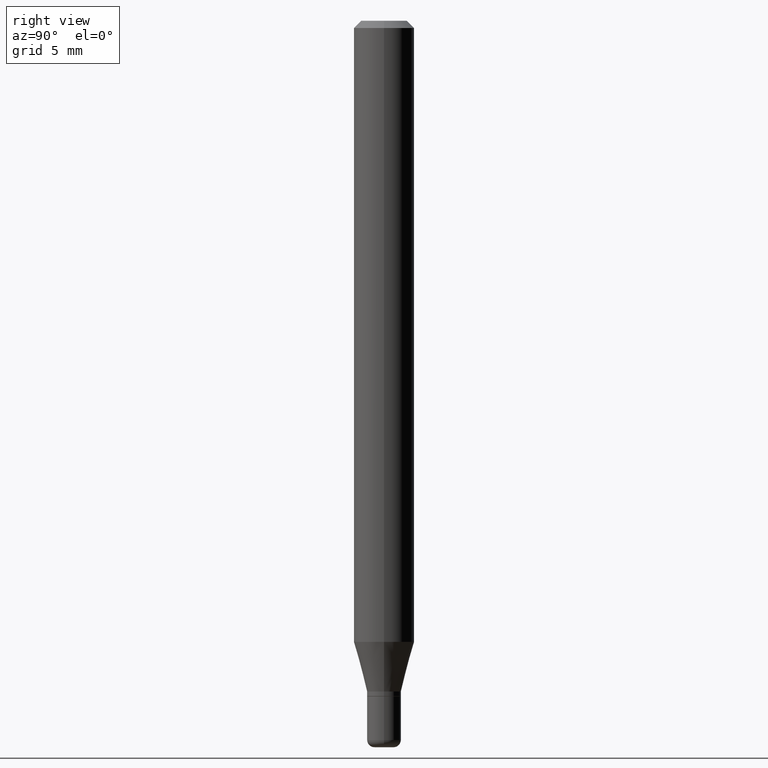
[diagram: clean part render]
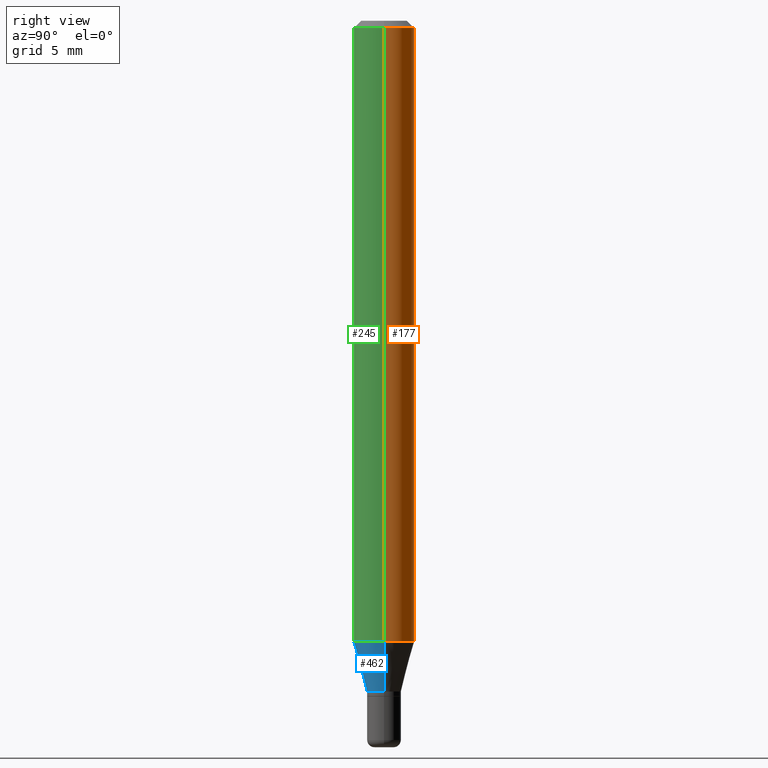
[diagram: same view with three faces highlighted in distinct colors, each labeled with its STEP entity id]
A machine part, right view with three faces highlighted in distinct colors.
Their STEP definitions:

[orange] entity #177 — the highlighted cylindrical surface (edge-blend (fillet) strip) has radius 1.5875 mm, axis along (-0, 0, 1).
#1 = VECTOR ( 'NONE', #204, 39.37007874015748143 ) ;
#4 = AXIS2_PLACEMENT_3D ( 'NONE', #450, #444, #92 ) ;
#35 = VERTEX_POINT ( 'NONE', #117 ) ;
#49 = EDGE_CURVE ( 'NONE', #268, #273, #407, .T. ) ;
#50 = CARTESIAN_POINT ( 'NONE',  ( 3.135992416158702162E-29, -4.477366046166123715E-15, -1.282368602791856160 ) ) ;
#64 = CARTESIAN_POINT ( 'NONE',  ( -0.06250000000000000000, -4.033276836316061099E-15, -1.282368602791856160 ) ) ;
#80 = CARTESIAN_POINT ( 'NONE',  ( 0.06250000000000000000, -4.888073874380378612E-16, -0.01499999999999970281 ) ) ;
#85 = CARTESIAN_POINT ( 'NONE',  ( -0.06250000000000000000, -1.820779923274322189E-15, -0.01499999999999970281 ) ) ;
#92 = DIRECTION ( 'NONE',  ( 1.000000000000000000, -6.982962677686266711E-15, 0.000000000000000000 ) ) ;
#96 = DIRECTION ( 'NONE',  ( -2.445468806185136597E-29, 3.491481338843145583E-15, 1.000000000000000000 ) ) ;
#98 = EDGE_CURVE ( 'NONE', #35, #268, #457, .T. ) ;
#117 = CARTESIAN_POINT ( 'NONE',  ( 0.06250000000000000000, -4.913801213521515384E-15, -1.282368602791856160 ) ) ;
#147 = ORIENTED_EDGE ( 'NONE', *, *, #49, .T. ) ;
#149 = ORIENTED_EDGE ( 'NONE', *, *, #185, .F. ) ;
#177 = ADVANCED_FACE ( 'NONE', ( #421 ), #178, .T. ) ;
#178 = CYLINDRICAL_SURFACE ( 'NONE', #458, 0.06250000000000000000 ) ;
#181 = CIRCLE ( 'NONE', #4, 0.06250000000000000000 ) ;
#185 = EDGE_CURVE ( 'NONE', #35, #276, #254, .T. ) ;
#186 = ORIENTED_EDGE ( 'NONE', *, *, #98, .T. ) ;
#204 = DIRECTION ( 'NONE',  ( -2.445468806185136877E-29, 3.491481338843145188E-15, 1.000000000000000000 ) ) ;
#246 = VECTOR ( 'NONE', #454, 39.37007874015748143 ) ;
#254 = LINE ( 'NONE', #414, #246 ) ;
#268 = VERTEX_POINT ( 'NONE', #64 ) ;
#273 = VERTEX_POINT ( 'NONE', #85 ) ;
#276 = VERTEX_POINT ( 'NONE', #80 ) ;
#297 = DIRECTION ( 'NONE',  ( -2.445468806185136597E-29, 3.491481338843145583E-15, 1.000000000000000000 ) ) ;
#340 = DIRECTION ( 'NONE',  ( 1.000000000000000000, -6.982962677686266711E-15, 4.876176775795935793E-29 ) ) ;
#341 = CARTESIAN_POINT ( 'NONE',  ( 0.000000000000000000, 0.000000000000000000, 0.000000000000000000 ) ) ;
#367 = CARTESIAN_POINT ( 'NONE',  ( -0.06250000000000000000, 4.440892098500626162E-16, -3.074334431409316114E-30 ) ) ;
#384 = AXIS2_PLACEMENT_3D ( 'NONE', #50, #96, #440 ) ;
#407 = LINE ( 'NONE', #367, #1 ) ;
#414 = CARTESIAN_POINT ( 'NONE',  ( 0.06250000000000000000, -4.364351673553916694E-16, 3.047610484872459871E-30 ) ) ;
#418 = EDGE_CURVE ( 'NONE', #276, #273, #181, .T. ) ;
#421 = FACE_OUTER_BOUND ( 'NONE', #504, .T. ) ;
#440 = DIRECTION ( 'NONE',  ( 1.000000000000000000, -6.982962677686262766E-15, 0.000000000000000000 ) ) ;
#444 = DIRECTION ( 'NONE',  ( -2.445468806185136597E-29, 3.491481338843145583E-15, 1.000000000000000000 ) ) ;
#450 = CARTESIAN_POINT ( 'NONE',  ( 3.668203209277632395E-31, -5.237222008264614861E-17, -0.01499999999999970281 ) ) ;
#454 = DIRECTION ( 'NONE',  ( -2.445468806185136877E-29, 3.491481338843145188E-15, 1.000000000000000000 ) ) ;
#457 = CIRCLE ( 'NONE', #384, 0.06250000000000000000 ) ;
#458 = AXIS2_PLACEMENT_3D ( 'NONE', #341, #297, #340 ) ;
#504 = EDGE_LOOP ( 'NONE', ( #186, #147, #513, #149 ) ) ;
#513 = ORIENTED_EDGE ( 'NONE', *, *, #418, .F. ) ;

[blue] entity #462 — the highlighted conical surface has half-angle 15 deg.
#2 = DIRECTION ( 'NONE',  ( 0.2588190451025211281, 1.565188264969622954E-15, 0.9659258262890679791 ) ) ;
#6 = CARTESIAN_POINT ( 'NONE',  ( 3.135992416158702162E-29, -4.477366046166123715E-15, -1.282368602791856160 ) ) ;
#10 = DIRECTION ( 'NONE',  ( -2.445468806185136597E-29, 3.491481338843145583E-15, 1.000000000000000000 ) ) ;
#15 = VERTEX_POINT ( 'NONE', #266 ) ;
#35 = VERTEX_POINT ( 'NONE', #117 ) ;
#56 = FACE_OUTER_BOUND ( 'NONE', #437, .T. ) ;
#57 = EDGE_CURVE ( 'NONE', #183, #15, #133, .T. ) ;
#64 = CARTESIAN_POINT ( 'NONE',  ( -0.06250000000000000000, -4.033276836316061099E-15, -1.282368602791856160 ) ) ;
#82 = CARTESIAN_POINT ( 'NONE',  ( 3.386974296566414366E-29, -4.835701654297756579E-15, -1.385000000000000009 ) ) ;
#83 = EDGE_CURVE ( 'NONE', #15, #35, #252, .T. ) ;
#90 = DIRECTION ( 'NONE',  ( -2.445468806185136597E-29, 3.491481338843145583E-15, 1.000000000000000000 ) ) ;
#102 = ORIENTED_EDGE ( 'NONE', *, *, #83, .T. ) ;
#111 = ORIENTED_EDGE ( 'NONE', *, *, #160, .F. ) ;
#117 = CARTESIAN_POINT ( 'NONE',  ( 0.06250000000000000000, -4.913801213521515384E-15, -1.282368602791856160 ) ) ;
#133 = CIRCLE ( 'NONE', #424, 0.03500000000000001027 ) ;
#160 = EDGE_CURVE ( 'NONE', #268, #35, #209, .T. ) ;
#183 = VERTEX_POINT ( 'NONE', #380 ) ;
#200 = CONICAL_SURFACE ( 'NONE', #413, 0.03500000000000001027, 0.2617993877991498519 ) ;
#209 = CIRCLE ( 'NONE', #237, 0.06250000000000000000 ) ;
#221 = CARTESIAN_POINT ( 'NONE',  ( -0.03500000000000001027, -4.587011696781721293E-15, -1.385000000000000009 ) ) ;
#224 = DIRECTION ( 'NONE',  ( -0.2588190451025211281, 5.211531920934547886E-15, 0.9659258262890679791 ) ) ;
#237 = AXIS2_PLACEMENT_3D ( 'NONE', #6, #90, #479 ) ;
#238 = ORIENTED_EDGE ( 'NONE', *, *, #329, .F. ) ;
#240 = LINE ( 'NONE', #221, #484 ) ;
#248 = CARTESIAN_POINT ( 'NONE',  ( 3.386974296566414366E-29, -4.835701654297756579E-15, -1.385000000000000009 ) ) ;
#252 = LINE ( 'NONE', #285, #419 ) ;
#266 = CARTESIAN_POINT ( 'NONE',  ( 0.03500000000000001027, -5.080105348016776545E-15, -1.385000000000000009 ) ) ;
#268 = VERTEX_POINT ( 'NONE', #64 ) ;
#272 = ORIENTED_EDGE ( 'NONE', *, *, #57, .T. ) ;
#285 = CARTESIAN_POINT ( 'NONE',  ( 0.03500000000000001027, -5.080105348016776545E-15, -1.385000000000000009 ) ) ;
#328 = DIRECTION ( 'NONE',  ( 1.000000000000000000, -6.982962677686275388E-15, 0.000000000000000000 ) ) ;
#329 = EDGE_CURVE ( 'NONE', #183, #268, #240, .T. ) ;
#380 = CARTESIAN_POINT ( 'NONE',  ( -0.03500000000000001027, -4.310144266548890801E-15, -1.385000000000000009 ) ) ;
#409 = DIRECTION ( 'NONE',  ( -2.445468806185136597E-29, 3.491481338843145583E-15, 1.000000000000000000 ) ) ;
#413 = AXIS2_PLACEMENT_3D ( 'NONE', #248, #409, #483 ) ;
#419 = VECTOR ( 'NONE', #2, 39.37007874015748854 ) ;
#424 = AXIS2_PLACEMENT_3D ( 'NONE', #82, #10, #328 ) ;
#437 = EDGE_LOOP ( 'NONE', ( #238, #272, #102, #111 ) ) ;
#462 = ADVANCED_FACE ( 'NONE', ( #56 ), #200, .T. ) ;
#479 = DIRECTION ( 'NONE',  ( 1.000000000000000000, -6.982962677686262766E-15, 0.000000000000000000 ) ) ;
#483 = DIRECTION ( 'NONE',  ( 1.000000000000000000, -6.982962677686275388E-15, 0.000000000000000000 ) ) ;
#484 = VECTOR ( 'NONE', #224, 39.37007874015748854 ) ;

[green] entity #245 — the highlighted cylindrical surface (edge-blend (fillet) strip) has radius 1.5875 mm, axis along (-0, 0, 1).
#1 = VECTOR ( 'NONE', #204, 39.37007874015748143 ) ;
#6 = CARTESIAN_POINT ( 'NONE',  ( 3.135992416158702162E-29, -4.477366046166123715E-15, -1.282368602791856160 ) ) ;
#16 = CARTESIAN_POINT ( 'NONE',  ( 0.000000000000000000, 0.000000000000000000, 0.000000000000000000 ) ) ;
#35 = VERTEX_POINT ( 'NONE', #117 ) ;
#49 = EDGE_CURVE ( 'NONE', #268, #273, #407, .T. ) ;
#51 = CARTESIAN_POINT ( 'NONE',  ( 3.668203209277632395E-31, -5.237222008264614861E-17, -0.01499999999999970281 ) ) ;
#64 = CARTESIAN_POINT ( 'NONE',  ( -0.06250000000000000000, -4.033276836316061099E-15, -1.282368602791856160 ) ) ;
#68 = AXIS2_PLACEMENT_3D ( 'NONE', #16, #477, #280 ) ;
#79 = ORIENTED_EDGE ( 'NONE', *, *, #130, .F. ) ;
#80 = CARTESIAN_POINT ( 'NONE',  ( 0.06250000000000000000, -4.888073874380378612E-16, -0.01499999999999970281 ) ) ;
#85 = CARTESIAN_POINT ( 'NONE',  ( -0.06250000000000000000, -1.820779923274322189E-15, -0.01499999999999970281 ) ) ;
#90 = DIRECTION ( 'NONE',  ( -2.445468806185136597E-29, 3.491481338843145583E-15, 1.000000000000000000 ) ) ;
#99 = AXIS2_PLACEMENT_3D ( 'NONE', #51, #208, #478 ) ;
#117 = CARTESIAN_POINT ( 'NONE',  ( 0.06250000000000000000, -4.913801213521515384E-15, -1.282368602791856160 ) ) ;
#130 = EDGE_CURVE ( 'NONE', #273, #276, #498, .T. ) ;
#142 = ORIENTED_EDGE ( 'NONE', *, *, #160, .T. ) ;
#160 = EDGE_CURVE ( 'NONE', #268, #35, #209, .T. ) ;
#185 = EDGE_CURVE ( 'NONE', #35, #276, #254, .T. ) ;
#204 = DIRECTION ( 'NONE',  ( -2.445468806185136877E-29, 3.491481338843145188E-15, 1.000000000000000000 ) ) ;
#208 = DIRECTION ( 'NONE',  ( -2.445468806185136597E-29, 3.491481338843145583E-15, 1.000000000000000000 ) ) ;
#209 = CIRCLE ( 'NONE', #237, 0.06250000000000000000 ) ;
#237 = AXIS2_PLACEMENT_3D ( 'NONE', #6, #90, #479 ) ;
#245 = ADVANCED_FACE ( 'NONE', ( #373 ), #335, .T. ) ;
#246 = VECTOR ( 'NONE', #454, 39.37007874015748143 ) ;
#254 = LINE ( 'NONE', #414, #246 ) ;
#268 = VERTEX_POINT ( 'NONE', #64 ) ;
#273 = VERTEX_POINT ( 'NONE', #85 ) ;
#276 = VERTEX_POINT ( 'NONE', #80 ) ;
#280 = DIRECTION ( 'NONE',  ( 1.000000000000000000, -6.982962677686266711E-15, 4.876176775795935793E-29 ) ) ;
#335 = CYLINDRICAL_SURFACE ( 'NONE', #68, 0.06250000000000000000 ) ;
#367 = CARTESIAN_POINT ( 'NONE',  ( -0.06250000000000000000, 4.440892098500626162E-16, -3.074334431409316114E-30 ) ) ;
#373 = FACE_OUTER_BOUND ( 'NONE', #508, .T. ) ;
#383 = ORIENTED_EDGE ( 'NONE', *, *, #49, .F. ) ;
#407 = LINE ( 'NONE', #367, #1 ) ;
#414 = CARTESIAN_POINT ( 'NONE',  ( 0.06250000000000000000, -4.364351673553916694E-16, 3.047610484872459871E-30 ) ) ;
#430 = ORIENTED_EDGE ( 'NONE', *, *, #185, .T. ) ;
#454 = DIRECTION ( 'NONE',  ( -2.445468806185136877E-29, 3.491481338843145188E-15, 1.000000000000000000 ) ) ;
#477 = DIRECTION ( 'NONE',  ( -2.445468806185136597E-29, 3.491481338843145583E-15, 1.000000000000000000 ) ) ;
#478 = DIRECTION ( 'NONE',  ( 1.000000000000000000, -6.982962677686266711E-15, 0.000000000000000000 ) ) ;
#479 = DIRECTION ( 'NONE',  ( 1.000000000000000000, -6.982962677686262766E-15, 0.000000000000000000 ) ) ;
#498 = CIRCLE ( 'NONE', #99, 0.06250000000000000000 ) ;
#508 = EDGE_LOOP ( 'NONE', ( #383, #142, #430, #79 ) ) ;